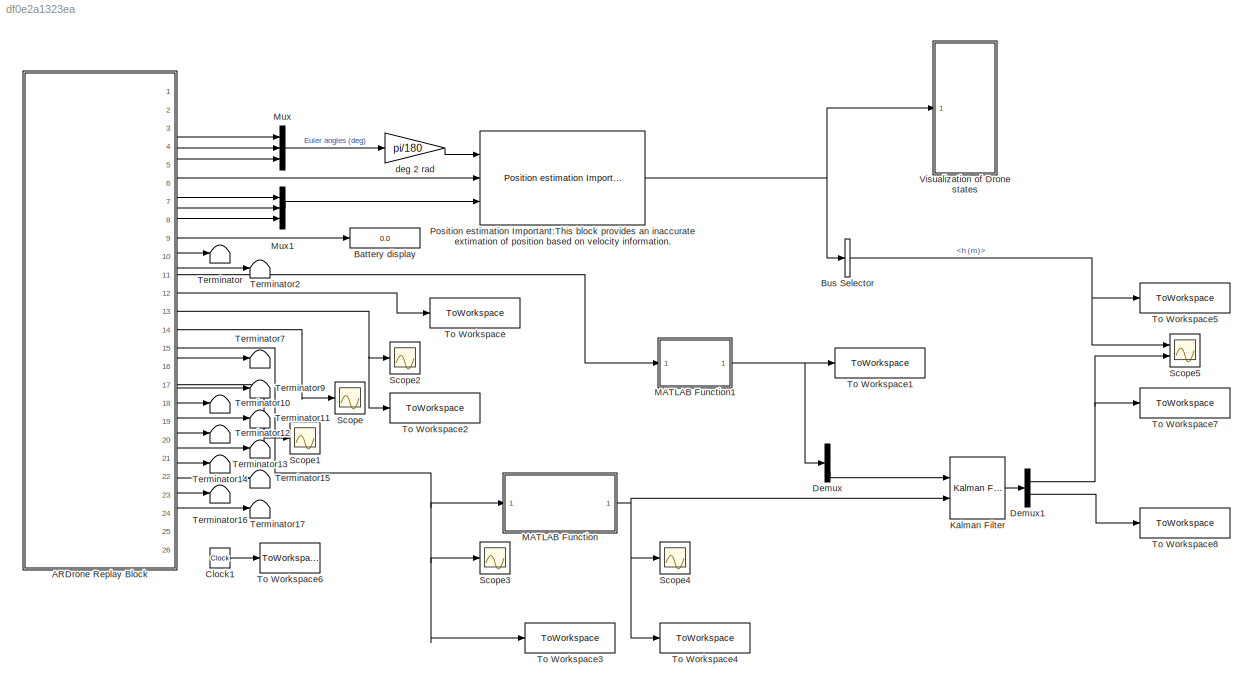
MODEL slx_df0e2a1323ea
KIND model
CONFIG AbsTol = auto
CONFIG EnableMultiTasking = on
CONFIG FixedStep = sampleTime
CONFIG MaxStep = auto
CONFIG MinStep = auto
CONFIG RelTol = 1e-3
CONFIG SampleTimeConstraint = Unconstrained
CONFIG Solver = ode1
CONFIG SolverName = ode1
CONFIG StartTime = 0.0
CONFIG StopTime = inf
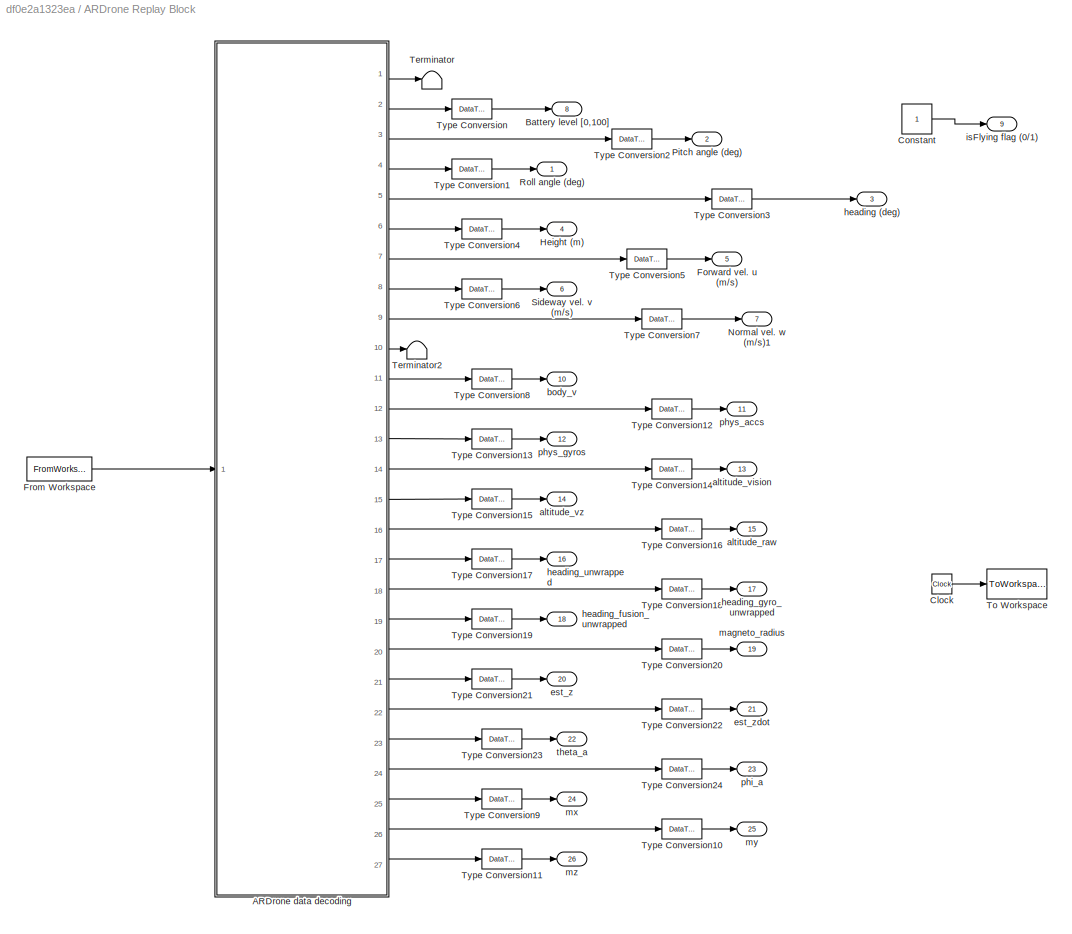
BLOCK [SubSystem] ARDrone Replay Block
  AncestorBlock = ARBlocks/ARDrone Wi-Fi  Block
  Ports = [0, 26]
  RequestExecContextInheritance = off
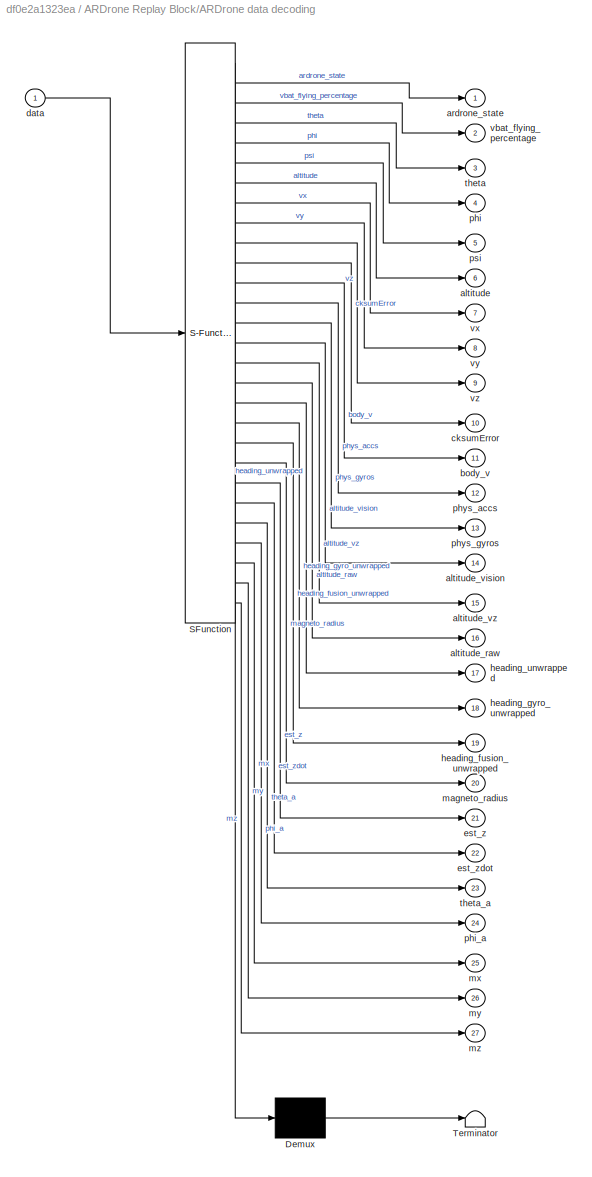
BLOCK [SubSystem] ARDrone Replay Block/ARDrone data decoding
  ErrorFcn = Stateflow.Translate.translate
  PermitHierarchicalResolution = ExplicitOnly
  Ports = [1, 27]
  RequestExecContextInheritance = off
  SFBlockType = MATLAB Function
  TreatAsAtomicUnit = on
BLOCK [Demux] ARDrone Replay Block/ARDrone data decoding/ Demux 
  Outputs = 1
  Ports = [1, 1]
BLOCK [S-Function] ARDrone Replay Block/ARDrone data decoding/ SFunction 
  EnableBusSupport = on
  FunctionName = sf_sfun
  PortCounts = [1 28]
  Ports = [1, 28]
  SFcnIsStateOwnerBlock = off
  SFunctionDeploymentMode = off
  Tag = Stateflow S-Function 1
BLOCK [Terminator] ARDrone Replay Block/ARDrone data decoding/ Terminator 
BLOCK [Outport] ARDrone Replay Block/ARDrone data decoding/altitude
  Port = 6
  VectorParamsAs1DForOutWhenUnconnected = off
BLOCK [Outport] ARDrone Replay Block/ARDrone data decoding/altitude_raw
  Port = 16
  VectorParamsAs1DForOutWhenUnconnected = off
BLOCK [Outport] ARDrone Replay Block/ARDrone data decoding/altitude_vision
  Port = 14
  VectorParamsAs1DForOutWhenUnconnected = off
BLOCK [Outport] ARDrone Replay Block/ARDrone data decoding/altitude_vz
  Port = 15
  VectorParamsAs1DForOutWhenUnconnected = off
BLOCK [Outport] ARDrone Replay Block/ARDrone data decoding/ardrone_state
  VectorParamsAs1DForOutWhenUnconnected = off
BLOCK [Outport] ARDrone Replay Block/ARDrone data decoding/body_v
  Port = 11
  VectorParamsAs1DForOutWhenUnconnected = off
BLOCK [Outport] ARDrone Replay Block/ARDrone data decoding/cksumError
  Port = 10
  VectorParamsAs1DForOutWhenUnconnected = off
BLOCK [Inport] ARDrone Replay Block/ARDrone data decoding/data
BLOCK [Outport] ARDrone Replay Block/ARDrone data decoding/est_z
  Port = 21
  VectorParamsAs1DForOutWhenUnconnected = off
BLOCK [Outport] ARDrone Replay Block/ARDrone data decoding/est_zdot
  Port = 22
  VectorParamsAs1DForOutWhenUnconnected = off
BLOCK [Outport] ARDrone Replay Block/ARDrone data decoding/heading_fusion_unwrapped
  Port = 19
  VectorParamsAs1DForOutWhenUnconnected = off
BLOCK [Outport] ARDrone Replay Block/ARDrone data decoding/heading_gyro_unwrapped
  Port = 18
  VectorParamsAs1DForOutWhenUnconnected = off
BLOCK [Outport] ARDrone Replay Block/ARDrone data decoding/heading_unwrapped
  Port = 17
  VectorParamsAs1DForOutWhenUnconnected = off
BLOCK [Outport] ARDrone Replay Block/ARDrone data decoding/magneto_radius
  Port = 20
  VectorParamsAs1DForOutWhenUnconnected = off
BLOCK [Outport] ARDrone Replay Block/ARDrone data decoding/mx
  Port = 25
  VectorParamsAs1DForOutWhenUnconnected = off
BLOCK [Outport] ARDrone Replay Block/ARDrone data decoding/my
  Port = 26
  VectorParamsAs1DForOutWhenUnconnected = off
BLOCK [Outport] ARDrone Replay Block/ARDrone data decoding/mz
  Port = 27
  VectorParamsAs1DForOutWhenUnconnected = off
BLOCK [Outport] ARDrone Replay Block/ARDrone data decoding/phi
  Port = 4
  VectorParamsAs1DForOutWhenUnconnected = off
BLOCK [Outport] ARDrone Replay Block/ARDrone data decoding/phi_a
  Port = 24
  VectorParamsAs1DForOutWhenUnconnected = off
BLOCK [Outport] ARDrone Replay Block/ARDrone data decoding/phys_accs
  Port = 12
  VectorParamsAs1DForOutWhenUnconnected = off
BLOCK [Outport] ARDrone Replay Block/ARDrone data decoding/phys_gyros
  Port = 13
  VectorParamsAs1DForOutWhenUnconnected = off
BLOCK [Outport] ARDrone Replay Block/ARDrone data decoding/psi
  Port = 5
  VectorParamsAs1DForOutWhenUnconnected = off
BLOCK [Outport] ARDrone Replay Block/ARDrone data decoding/theta
  Port = 3
  VectorParamsAs1DForOutWhenUnconnected = off
BLOCK [Outport] ARDrone Replay Block/ARDrone data decoding/theta_a
  Port = 23
  VectorParamsAs1DForOutWhenUnconnected = off
BLOCK [Outport] ARDrone Replay Block/ARDrone data decoding/vbat_flying_percentage
  Port = 2
  VectorParamsAs1DForOutWhenUnconnected = off
BLOCK [Outport] ARDrone Replay Block/ARDrone data decoding/vx
  Port = 7
  VectorParamsAs1DForOutWhenUnconnected = off
BLOCK [Outport] ARDrone Replay Block/ARDrone data decoding/vy
  Port = 8
  VectorParamsAs1DForOutWhenUnconnected = off
BLOCK [Outport] ARDrone Replay Block/ARDrone data decoding/vz
  Port = 9
  VectorParamsAs1DForOutWhenUnconnected = off
BLOCK [Outport] ARDrone Replay Block/Battery level [0,100]
  Port = 8
  VectorParamsAs1DForOutWhenUnconnected = off
BLOCK [Clock] ARDrone Replay Block/Clock
  Decimation = 100
BLOCK [Constant] ARDrone Replay Block/Constant
BLOCK [Outport] ARDrone Replay Block/Forward vel. u (m//s)
  Port = 5
  VectorParamsAs1DForOutWhenUnconnected = off
BLOCK [FromWorkspace] ARDrone Replay Block/From Workspace
  VariableName = navdata
BLOCK [Outport] ARDrone Replay Block/Height (m)
  Port = 4
  VectorParamsAs1DForOutWhenUnconnected = off
BLOCK [Outport] ARDrone Replay Block/Normal vel. w (m//s)1
  Port = 7
  VectorParamsAs1DForOutWhenUnconnected = off
BLOCK [Outport] ARDrone Replay Block/Pitch angle (deg)
  Port = 2
  VectorParamsAs1DForOutWhenUnconnected = off
BLOCK [Outport] ARDrone Replay Block/Roll angle (deg)
  VectorParamsAs1DForOutWhenUnconnected = off
BLOCK [Outport] ARDrone Replay Block/Sideway vel. v (m//s)
  Port = 6
  VectorParamsAs1DForOutWhenUnconnected = off
BLOCK [Terminator] ARDrone Replay Block/Terminator
BLOCK [Terminator] ARDrone Replay Block/Terminator2
BLOCK [ToWorkspace] ARDrone Replay Block/To Workspace
  FixptAsFi = on
  MaxDataPoints = inf
  Ports = [1]
  SampleTime = -1
  SaveFormat = Timeseries
  VariableName = ignore
BLOCK [DataTypeConversion] ARDrone Replay Block/Type Conversion
  OutDataTypeStr = double
  RndMeth = Floor
  SaturateOnIntegerOverflow = off
BLOCK [DataTypeConversion] ARDrone Replay Block/Type Conversion1
  OutDataTypeStr = double
  RndMeth = Floor
  SaturateOnIntegerOverflow = off
BLOCK [DataTypeConversion] ARDrone Replay Block/Type Conversion10
  OutDataTypeStr = double
  RndMeth = Floor
  SaturateOnIntegerOverflow = off
BLOCK [DataTypeConversion] ARDrone Replay Block/Type Conversion11
  OutDataTypeStr = double
  RndMeth = Floor
  SaturateOnIntegerOverflow = off
BLOCK [DataTypeConversion] ARDrone Replay Block/Type Conversion12
  OutDataTypeStr = double
  RndMeth = Floor
  SaturateOnIntegerOverflow = off
BLOCK [DataTypeConversion] ARDrone Replay Block/Type Conversion13
  OutDataTypeStr = double
  RndMeth = Floor
  SaturateOnIntegerOverflow = off
BLOCK [DataTypeConversion] ARDrone Replay Block/Type Conversion14
  OutDataTypeStr = double
  RndMeth = Floor
  SaturateOnIntegerOverflow = off
BLOCK [DataTypeConversion] ARDrone Replay Block/Type Conversion15
  OutDataTypeStr = double
  RndMeth = Floor
  SaturateOnIntegerOverflow = off
BLOCK [DataTypeConversion] ARDrone Replay Block/Type Conversion16
  OutDataTypeStr = double
  RndMeth = Floor
  SaturateOnIntegerOverflow = off
BLOCK [DataTypeConversion] ARDrone Replay Block/Type Conversion17
  OutDataTypeStr = double
  RndMeth = Floor
  SaturateOnIntegerOverflow = off
BLOCK [DataTypeConversion] ARDrone Replay Block/Type Conversion18
  OutDataTypeStr = double
  RndMeth = Floor
  SaturateOnIntegerOverflow = off
BLOCK [DataTypeConversion] ARDrone Replay Block/Type Conversion19
  OutDataTypeStr = double
  RndMeth = Floor
  SaturateOnIntegerOverflow = off
BLOCK [DataTypeConversion] ARDrone Replay Block/Type Conversion2
  OutDataTypeStr = double
  RndMeth = Floor
  SaturateOnIntegerOverflow = off
BLOCK [DataTypeConversion] ARDrone Replay Block/Type Conversion20
  OutDataTypeStr = double
  RndMeth = Floor
  SaturateOnIntegerOverflow = off
BLOCK [DataTypeConversion] ARDrone Replay Block/Type Conversion21
  OutDataTypeStr = double
  RndMeth = Floor
  SaturateOnIntegerOverflow = off
BLOCK [DataTypeConversion] ARDrone Replay Block/Type Conversion22
  OutDataTypeStr = double
  RndMeth = Floor
  SaturateOnIntegerOverflow = off
BLOCK [DataTypeConversion] ARDrone Replay Block/Type Conversion23
  OutDataTypeStr = double
  RndMeth = Floor
  SaturateOnIntegerOverflow = off
BLOCK [DataTypeConversion] ARDrone Replay Block/Type Conversion24
  OutDataTypeStr = double
  RndMeth = Floor
  SaturateOnIntegerOverflow = off
BLOCK [DataTypeConversion] ARDrone Replay Block/Type Conversion3
  OutDataTypeStr = double
  RndMeth = Floor
  SaturateOnIntegerOverflow = off
BLOCK [DataTypeConversion] ARDrone Replay Block/Type Conversion4
  OutDataTypeStr = double
  RndMeth = Floor
  SaturateOnIntegerOverflow = off
BLOCK [DataTypeConversion] ARDrone Replay Block/Type Conversion5
  OutDataTypeStr = double
  RndMeth = Floor
  SaturateOnIntegerOverflow = off
BLOCK [DataTypeConversion] ARDrone Replay Block/Type Conversion6
  OutDataTypeStr = double
  RndMeth = Floor
  SaturateOnIntegerOverflow = off
BLOCK [DataTypeConversion] ARDrone Replay Block/Type Conversion7
  OutDataTypeStr = double
  RndMeth = Floor
  SaturateOnIntegerOverflow = off
BLOCK [DataTypeConversion] ARDrone Replay Block/Type Conversion8
  OutDataTypeStr = double
  RndMeth = Floor
  SaturateOnIntegerOverflow = off
BLOCK [DataTypeConversion] ARDrone Replay Block/Type Conversion9
  OutDataTypeStr = double
  RndMeth = Floor
  SaturateOnIntegerOverflow = off
BLOCK [Outport] ARDrone Replay Block/altitude_raw
  Port = 15
  VectorParamsAs1DForOutWhenUnconnected = off
BLOCK [Outport] ARDrone Replay Block/altitude_vision
  Port = 13
  VectorParamsAs1DForOutWhenUnconnected = off
BLOCK [Outport] ARDrone Replay Block/altitude_vz
  Port = 14
  VectorParamsAs1DForOutWhenUnconnected = off
BLOCK [Outport] ARDrone Replay Block/body_v
  Port = 10
  VectorParamsAs1DForOutWhenUnconnected = off
BLOCK [Outport] ARDrone Replay Block/est_z
  Port = 20
  VectorParamsAs1DForOutWhenUnconnected = off
BLOCK [Outport] ARDrone Replay Block/est_zdot
  Port = 21
  VectorParamsAs1DForOutWhenUnconnected = off
BLOCK [Outport] ARDrone Replay Block/heading  (deg)
  Port = 3
  VectorParamsAs1DForOutWhenUnconnected = off
BLOCK [Outport] ARDrone Replay Block/heading_fusion_unwrapped
  Port = 18
  VectorParamsAs1DForOutWhenUnconnected = off
BLOCK [Outport] ARDrone Replay Block/heading_gyro_unwrapped
  Port = 17
  VectorParamsAs1DForOutWhenUnconnected = off
BLOCK [Outport] ARDrone Replay Block/heading_unwrapped
  Port = 16
  VectorParamsAs1DForOutWhenUnconnected = off
BLOCK [Outport] ARDrone Replay Block/isFlying flag (0//1)
  Port = 9
  VectorParamsAs1DForOutWhenUnconnected = off
BLOCK [Outport] ARDrone Replay Block/magneto_radius
  Port = 19
  VectorParamsAs1DForOutWhenUnconnected = off
BLOCK [Outport] ARDrone Replay Block/mx
  Port = 24
  VectorParamsAs1DForOutWhenUnconnected = off
BLOCK [Outport] ARDrone Replay Block/my
  Port = 25
  VectorParamsAs1DForOutWhenUnconnected = off
BLOCK [Outport] ARDrone Replay Block/mz 
  Port = 26
  VectorParamsAs1DForOutWhenUnconnected = off
BLOCK [Outport] ARDrone Replay Block/phi_a
  Port = 23
  VectorParamsAs1DForOutWhenUnconnected = off
BLOCK [Outport] ARDrone Replay Block/phys_accs
  Port = 11
  VectorParamsAs1DForOutWhenUnconnected = off
BLOCK [Outport] ARDrone Replay Block/phys_gyros
  Port = 12
  VectorParamsAs1DForOutWhenUnconnected = off
BLOCK [Outport] ARDrone Replay Block/theta_a
  Port = 22
  VectorParamsAs1DForOutWhenUnconnected = off
BLOCK [Display] Battery display
  Decimation = 1
  Ports = [1]
BLOCK [BusSelector] Bus Selector
  OutputSignals = h (m)
  Ports = [1, 1]
BLOCK [Clock] Clock1
BLOCK [Demux] Demux
  Outputs = 3
  Ports = [1, 3]
BLOCK [Demux] Demux1
  Outputs = 2
  Ports = [1, 2]
BLOCK [Reference] Kalman Filter  REF=ctrlSharedLib/Kalman Filter
  Ports = [2, 1]
  SourceBlock = ctrlSharedLib/Kalman Filter
  SourceProductBaseCode = CT,ID
  SourceType = ctrlKalmanFilter
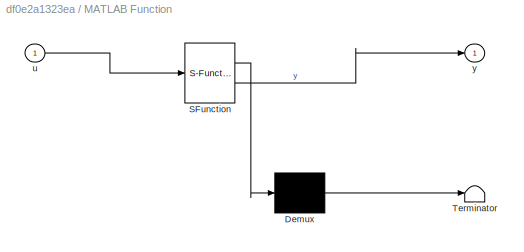
BLOCK [SubSystem] MATLAB Function
  ErrorFcn = Stateflow.Translate.translate
  PermitHierarchicalResolution = ExplicitOnly
  Ports = [1, 1]
  RequestExecContextInheritance = off
  SFBlockType = MATLAB Function
  TreatAsAtomicUnit = on
BLOCK [Demux] MATLAB Function/ Demux 
  Outputs = 1
  Ports = [1, 1]
BLOCK [S-Function] MATLAB Function/ SFunction 
  EnableBusSupport = on
  FunctionName = sf_sfun
  PortCounts = [1 2]
  Ports = [1, 2]
  SFcnIsStateOwnerBlock = off
  SFunctionDeploymentMode = off
  Tag = Stateflow S-Function 2
BLOCK [Terminator] MATLAB Function/ Terminator 
BLOCK [Inport] MATLAB Function/u
BLOCK [Outport] MATLAB Function/y
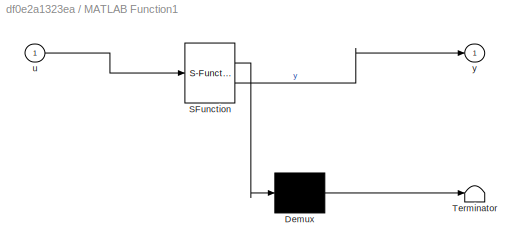
BLOCK [SubSystem] MATLAB Function1
  ErrorFcn = Stateflow.Translate.translate
  PermitHierarchicalResolution = ExplicitOnly
  Ports = [1, 1]
  RequestExecContextInheritance = off
  SFBlockType = MATLAB Function
  TreatAsAtomicUnit = on
BLOCK [Demux] MATLAB Function1/ Demux 
  Outputs = 1
  Ports = [1, 1]
BLOCK [S-Function] MATLAB Function1/ SFunction 
  EnableBusSupport = on
  FunctionName = sf_sfun
  PortCounts = [1 2]
  Ports = [1, 2]
  SFcnIsStateOwnerBlock = off
  SFunctionDeploymentMode = off
  Tag = Stateflow S-Function 3
BLOCK [Terminator] MATLAB Function1/ Terminator 
BLOCK [Inport] MATLAB Function1/u
BLOCK [Outport] MATLAB Function1/y
BLOCK [Mux] Mux
  DisplayOption = bar
  Inputs = 3
  Ports = [3, 1]
BLOCK [Mux] Mux1
  DisplayOption = bar
  Inputs = 3
  Ports = [3, 1]
BLOCK [Reference] Position estimation Important:This block provides an inaccurate extimation of position based on  velocity information.   REF=ARBlocks/Position estimation
Important:This block provides an 
inaccurate extimation of position 
based on  velocity information. 
  Ports = [3, 1]
  SourceBlock = ARBlocks/Position estimation\nImportant:This block provides an \ninaccurate extimation of position \nbased on  velocity information.
  SourceType = SubSystem
BLOCK [Scope] Scope
  Floating = off
  NumInputPorts = 1
  Ports = [1]
  ScopeSpecificationString = Simulink.scopes.TimeScopeBlockCfg('CurrentConfiguration', extmgr.ConfigurationSet(extmgr.Configuration('Core','General UI',true),extmgr.Configuration('Core','Source UI',true),extmgr.Configuration('Sources','WiredSimulink',true,'DataLoggingVariableName','ScopeData1'),extmgr.Configuration('Visuals','Time Domain',true,'SerializedDisplays',{struct('MinYLimReal','-1701.65588','MaxYLimReal','2024.84802'...<+1431ch>
BLOCK [Scope] Scope1
  Floating = off
  NumInputPorts = 1
  Ports = [1]
  ScopeSpecificationString = Simulink.scopes.TimeScopeBlockCfg('CurrentConfiguration', extmgr.ConfigurationSet(extmgr.Configuration('Core','General UI',true),extmgr.Configuration('Core','Source UI',true),extmgr.Configuration('Sources','WiredSimulink',true,'DataLoggingVariableName','ScopeData2'),extmgr.Configuration('Visuals','Time Domain',true,'SerializedDisplays',{struct('MinYLimReal','-1.00000','MaxYLimReal','1.00000','YLab...<+1382ch>
BLOCK [Scope] Scope2
  Floating = off
  NumInputPorts = 1
  Ports = [1]
  ScopeSpecificationString = Simulink.scopes.TimeScopeBlockCfg('CurrentConfiguration', extmgr.ConfigurationSet(extmgr.Configuration('Core','General UI',true),extmgr.Configuration('Core','Source UI',true),extmgr.Configuration('Sources','WiredSimulink',true,'DataLoggingVariableName','ScopeData2'),extmgr.Configuration('Visuals','Time Domain',true,'SerializedDisplays',{struct('MinYLimReal','-1.00000','MaxYLimReal','1.00000','YLab...<+1426ch>
BLOCK [Scope] Scope3
  Floating = off
  NumInputPorts = 1
  Ports = [1]
  ScopeSpecificationString = Simulink.scopes.TimeScopeBlockCfg('CurrentConfiguration', extmgr.ConfigurationSet(extmgr.Configuration('Core','General UI',true),extmgr.Configuration('Core','Source UI',true),extmgr.Configuration('Sources','WiredSimulink',true,'DataLoggingVariableName','ScopeData1'),extmgr.Configuration('Visuals','Time Domain',true,'SerializedDisplays',{struct('MinYLimReal','-0.000000000000000000000000000000000000...<+1730ch>
BLOCK [Scope] Scope4
  Floating = off
  NumInputPorts = 1
  Ports = [1]
  ScopeSpecificationString = Simulink.scopes.TimeScopeBlockCfg('CurrentConfiguration', extmgr.ConfigurationSet(extmgr.Configuration('Core','General UI',true),extmgr.Configuration('Core','Source UI',true),extmgr.Configuration('Sources','WiredSimulink',true,'DataLoggingVariableName','ScopeData1'),extmgr.Configuration('Visuals','Time Domain',true,'SerializedDisplays',{struct('MinYLimReal','-0.66242','MaxYLimReal','1.40219','YLab...<+1421ch>
BLOCK [Scope] Scope5
  Floating = off
  NumInputPorts = 2
  Ports = [2]
  ScopeSpecificationString = Simulink.scopes.TimeScopeBlockCfg('CurrentConfiguration', extmgr.ConfigurationSet(extmgr.Configuration('Core','General UI',true),extmgr.Configuration('Core','Source UI',true),extmgr.Configuration('Sources','WiredSimulink',true,'DataLoggingVariableName','ScopeData2'),extmgr.Configuration('Visuals','Time Domain',true,'SerializedDisplays',{struct('MinYLimReal','-0.74819','MaxYLimReal','1.53955','YLab...<+1403ch>
BLOCK [Terminator] Terminator
BLOCK [Terminator] Terminator10
BLOCK [Terminator] Terminator11
BLOCK [Terminator] Terminator12
BLOCK [Terminator] Terminator13
BLOCK [Terminator] Terminator14
BLOCK [Terminator] Terminator15
BLOCK [Terminator] Terminator16
BLOCK [Terminator] Terminator17
BLOCK [Terminator] Terminator2
BLOCK [Terminator] Terminator7
BLOCK [Terminator] Terminator9
BLOCK [ToWorkspace] To Workspace
  FixptAsFi = on
  MaxDataPoints = inf
  Ports = [1]
  SampleTime = -1
  SaveFormat = Timeseries
  VariableName = sim_gyro
BLOCK [ToWorkspace] To Workspace1
  FixptAsFi = on
  MaxDataPoints = inf
  Ports = [1]
  SampleTime = -1
  SaveFormat = Timeseries
  VariableName = sim_acc
BLOCK [ToWorkspace] To Workspace2
  FixptAsFi = on
  MaxDataPoints = inf
  Ports = [1]
  SampleTime = -1
  SaveFormat = Timeseries
  VariableName = sim_alt_vision
BLOCK [ToWorkspace] To Workspace3
  FixptAsFi = on
  MaxDataPoints = inf
  Ports = [1]
  SampleTime = -1
  SaveFormat = Timeseries
  VariableName = sim_alt_ultrasound
BLOCK [ToWorkspace] To Workspace4
  FixptAsFi = on
  MaxDataPoints = inf
  Ports = [1]
  SampleTime = -1
  SaveFormat = Timeseries
  VariableName = sim_alt_ultrasound_corrected
BLOCK [ToWorkspace] To Workspace5
  FixptAsFi = on
  MaxDataPoints = inf
  Ports = [1]
  SampleTime = -1
  SaveFormat = Timeseries
  VariableName = sim_height_drone_real
BLOCK [ToWorkspace] To Workspace6
  MaxDataPoints = inf
  Ports = [1]
  SampleTime = sampleTime
  VariableName = timeRT
BLOCK [ToWorkspace] To Workspace7
  FixptAsFi = on
  MaxDataPoints = inf
  Ports = [1]
  SampleTime = -1
  SaveFormat = Timeseries
  VariableName = sim_height_hat
BLOCK [ToWorkspace] To Workspace8
  FixptAsFi = on
  MaxDataPoints = inf
  Ports = [1]
  SampleTime = -1
  SaveFormat = Timeseries
  VariableName = sim_vz_hat
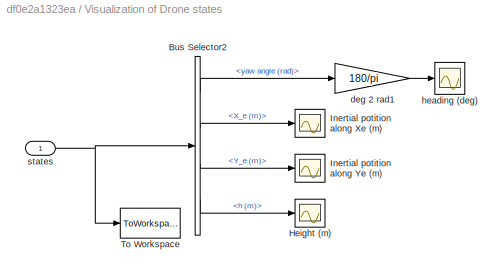
BLOCK [SubSystem] Visualization of Drone states
  Ports = [1]
  RequestExecContextInheritance = off
BLOCK [BusSelector] Visualization of Drone states/Bus Selector2
  NameLocation = top
  OutputSignals = yaw angle (rad),X_e (m),Y_e (m),h (m)
  Ports = [1, 4]
BLOCK [Scope] Visualization of Drone states/Height (m)
  Floating = off
  NumInputPorts = 1
  Ports = [1]
  ScopeSpecificationString = Simulink.scopes.TimeScopeBlockCfg('CurrentConfiguration', extmgr.ConfigurationSet(extmgr.Configuration('Core','General UI',true),extmgr.Configuration('Core','Source UI',true),extmgr.Configuration('Sources','WiredSimulink',true,'DataLoggingVariableName','ScopeData5','DataLoggingSaveFormat','StructureWithTime','DataLoggingMaxPoints','500000','DataLoggingLimitDataPoints',true,'DataLoggingDecimation',...<+1728ch>
BLOCK [Scope] Visualization of Drone states/Inertial potition along Xe (m)
  Floating = off
  NumInputPorts = 1
  Ports = [1]
  ScopeSpecificationString = Simulink.scopes.TimeScopeBlockCfg('CurrentConfiguration', extmgr.ConfigurationSet(extmgr.Configuration('Core','General UI',true),extmgr.Configuration('Core','Source UI',true),extmgr.Configuration('Sources','WiredSimulink',true,'DataLoggingVariableName','ScopeData3','DataLoggingSaveFormat','StructureWithTime','DataLoggingMaxPoints','500000','DataLoggingLimitDataPoints',true,'DataLoggingDecimation',...<+1735ch>
BLOCK [Scope] Visualization of Drone states/Inertial potition along Ye (m)
  Floating = off
  NumInputPorts = 1
  Ports = [1]
  ScopeSpecificationString = Simulink.scopes.TimeScopeBlockCfg('CurrentConfiguration', extmgr.ConfigurationSet(extmgr.Configuration('Core','General UI',true),extmgr.Configuration('Core','Source UI',true),extmgr.Configuration('Sources','WiredSimulink',true,'DataLoggingVariableName','ScopeData4','DataLoggingSaveFormat','StructureWithTime','DataLoggingMaxPoints','500000','DataLoggingLimitDataPoints',true,'DataLoggingDecimation',...<+1733ch>
BLOCK [ToWorkspace] Visualization of Drone states/To Workspace
  MaxDataPoints = inf
  Ports = [1]
  SampleTime = -1
  SaveFormat = Structure With Time
  VariableName = states
BLOCK [Gain] Visualization of Drone states/deg 2 rad1
  Gain = 180/pi
BLOCK [Scope] Visualization of Drone states/heading (deg)
  Floating = off
  NumInputPorts = 1
  Ports = [1]
  ScopeSpecificationString = Simulink.scopes.TimeScopeBlockCfg('CurrentConfiguration', extmgr.ConfigurationSet(extmgr.Configuration('Core','General UI',true),extmgr.Configuration('Core','Source UI',true),extmgr.Configuration('Sources','WiredSimulink',true,'DataLoggingVariableName','ScopeData2','DataLoggingSaveFormat','StructureWithTime','DataLoggingMaxPoints','500000','DataLoggingLimitDataPoints',true,'DataLoggingDecimation',...<+1746ch>
BLOCK [Inport] Visualization of Drone states/states
BLOCK [Gain] deg 2 rad
  Gain = pi/180
LINE ARDrone Replay Block:1 -> Mux:1
LINE ARDrone Replay Block:10 -> Terminator2:1
LINE ARDrone Replay Block:11 -> MATLAB Function1:1
LINE ARDrone Replay Block:12 -> To Workspace:1
NET ARDrone Replay Block:13 -> Scope2:1, To Workspace2:1
LINE ARDrone Replay Block:14 -> Scope:1
NET ARDrone Replay Block:15 -> MATLAB Function:1, Scope3:1, To Workspace3:1
LINE ARDrone Replay Block:16 -> Terminator7:1
LINE ARDrone Replay Block:17 -> Scope1:1
LINE ARDrone Replay Block:18 -> Terminator9:1
LINE ARDrone Replay Block:19 -> Terminator10:1
LINE ARDrone Replay Block:2 -> Mux:2
LINE ARDrone Replay Block:20 -> Terminator11:1
LINE ARDrone Replay Block:21 -> Terminator12:1
LINE ARDrone Replay Block:22 -> Terminator13:1
LINE ARDrone Replay Block:23 -> Terminator14:1
LINE ARDrone Replay Block:24 -> Terminator15:1
LINE ARDrone Replay Block:25 -> Terminator16:1
LINE ARDrone Replay Block:26 -> Terminator17:1
LINE ARDrone Replay Block:3 -> Mux:3
LINE ARDrone Replay Block:4 -> Position estimation Important:This block provides an inaccurate extimation of position based on  velocity information. :2
LINE ARDrone Replay Block:5 -> Mux1:1
LINE ARDrone Replay Block:6 -> Mux1:2
LINE ARDrone Replay Block:7 -> Mux1:3
LINE ARDrone Replay Block:8 -> Battery display:1
LINE ARDrone Replay Block:9 -> Terminator:1
NET Bus Selector:1 -> Scope5:1, To Workspace5:1
LINE Clock1:1 -> To Workspace6:1
NET Demux1:1 -> Scope5:2, To Workspace7:1
LINE Demux1:2 -> To Workspace8:1
LINE Demux:3 -> Kalman Filter:1
LINE Kalman Filter:1 -> Demux1:1
NET MATLAB Function1:1 -> Demux:1, To Workspace1:1
NET MATLAB Function:1 -> Kalman Filter:2, Scope4:1, To Workspace4:1
LINE Mux1:1 -> Position estimation Important:This block provides an inaccurate extimation of position based on  velocity information. :3
LINE Mux:1 -> deg 2 rad:1
NET Position estimation Important:This block provides an inaccurate extimation of position based on  velocity information. :1 -> Bus Selector:1, Visualization of Drone states:1
LINE Visualization of Drone states/Bus Selector2:1 -> Visualization of Drone states/deg 2 rad1:1
LINE Visualization of Drone states/Bus Selector2:2 -> Visualization of Drone states/Inertial potition along Xe (m):1
LINE Visualization of Drone states/Bus Selector2:3 -> Visualization of Drone states/Inertial potition along Ye (m):1
LINE Visualization of Drone states/Bus Selector2:4 -> Visualization of Drone states/Height (m):1
LINE Visualization of Drone states/deg 2 rad1:1 -> Visualization of Drone states/heading (deg):1
NET Visualization of Drone states/states:1 -> Visualization of Drone states/Bus Selector2:1, Visualization of Drone states/To Workspace:1
LINE deg 2 rad:1 -> Position estimation Important:This block provides an inaccurate extimation of position based on  velocity information. :1
note: NET lines group one-source signal fan-out (src -> all destinations, sorted); 1:1 wires keep LINE
CHART ARDrone Replay Block/ARDrone data decoding states=1 transitions=1
  STATE_LABEL 'eML_blk_kernel()'
  STATE_LABEL 'SCRIPT:\nfunction [ardrone_state, vbat_flying_percentage,...\n    theta, phi, psi, altitude, vx, vy, vz , cksumError, body_v,...\n    phys_accs,phys_gyros,altitude_vision,altitude_vz,altitude_raw,heading_unwrapped,heading_gyro_unwrapped,...\n    heading_fusion_unwrapped,magneto_radius,est_z,est_zdot,theta_a,phi_a,mx, my, mz]= trata_dados_large(data)\n\n%initialize arrays\nvbat_flying_percentage = 0;\nphi ...<+3608ch>'
CHART MATLAB Function states=1 transitions=1
  STATE_LABEL 'eML_blk_kernel()'
  STATE_LABEL 'SCRIPT:\nfunction y = height_correction(u)\n\ny = (u- 3.35*10^(-43))/(7.3472*10^(-43));\n'
CHART MATLAB Function1 states=1 transitions=1
  STATE_LABEL 'eML_blk_kernel()'
  STATE_LABEL 'SCRIPT:\nfunction y = acc_corretion(u)\n\nu(3) = -u(3);\ny = u*(9.8/(-1.0187*10^(3)));\n'
CHART  states=0 transitions=0
CHART  states=0 transitions=0
CHART  states=0 transitions=0
